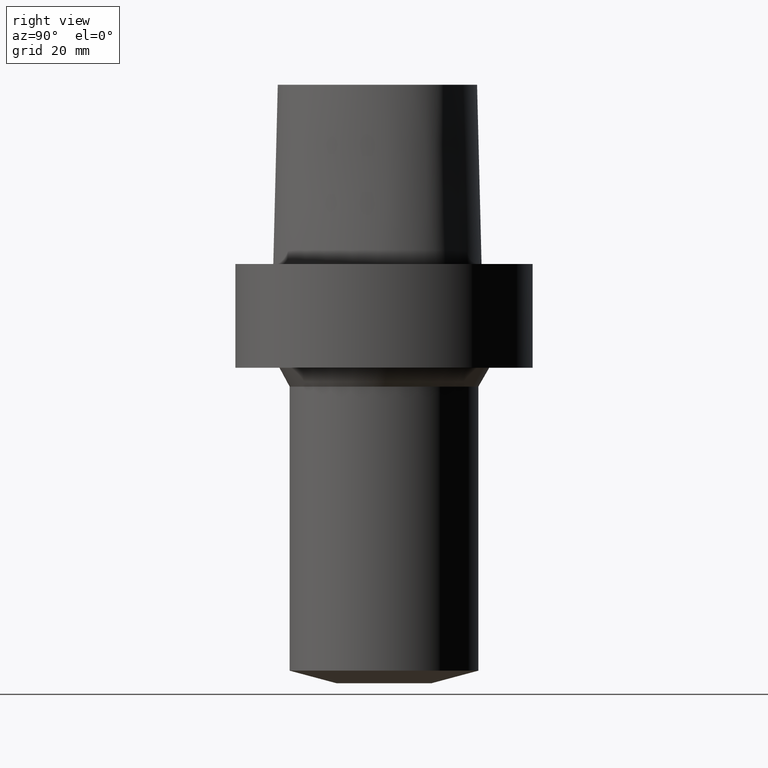
[diagram: clean part render]
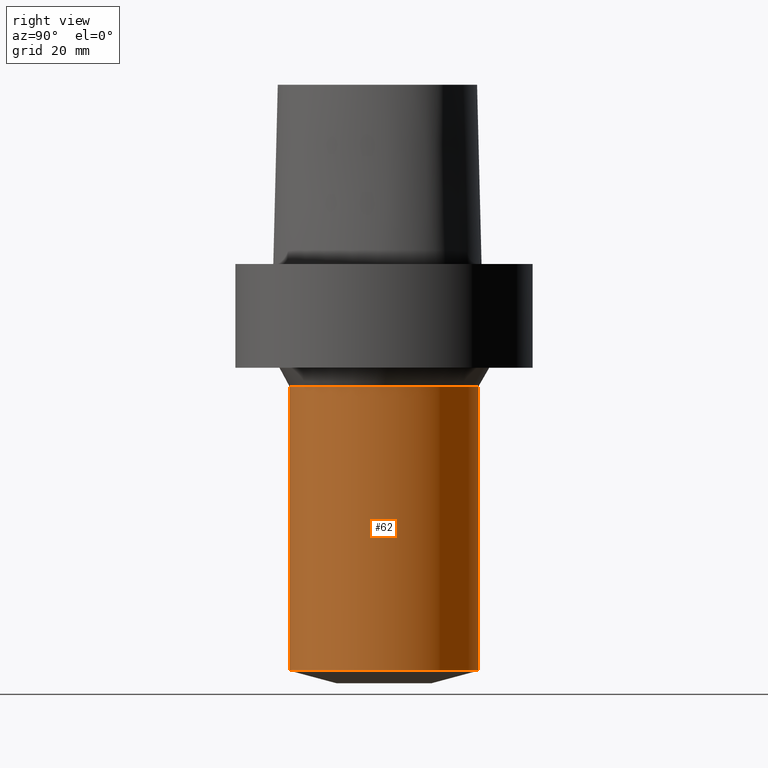
[diagram: same view with one face highlighted and labeled with its STEP entity id]
A machine part, right view. The second image highlights one B-rep face of the part: STEP entity #62.
In plain terms, the highlighted cylindrical surface (bore or boss wall) has radius 20 mm, axis along (0, 0, -1).
Its self-contained STEP definition (entity closure, byte-faithful):
#62=ADVANCED_FACE('Unnamed[1]',(#146,#147),#148,.T.);
#77=EDGE_CURVE('Unnamed[1]',#170,#170,#171,.T.);
#112=EDGE_CURVE('Unnamed[1]',#219,#219,#220,.T.);
#146=FACE_BOUND('',#316,.T.);
#147=FACE_BOUND('',#317,.T.);
#148=CYLINDRICAL_SURFACE('',#318,19.9999999999962);
#170=VERTEX_POINT('',#364);
#171=CIRCLE('',#365,19.9999999999962);
#219=VERTEX_POINT('',#546);
#220=CIRCLE('',#547,19.9999999999962);
#316=EDGE_LOOP('',(#563));
#317=EDGE_LOOP('',(#564));
#318=AXIS2_PLACEMENT_3D('',#565,#566,#567);
#364=CARTESIAN_POINT('',(5.27948346178823E-015,19.9999999999962,-86.2205080757));
#365=AXIS2_PLACEMENT_3D('',#582,#583,#584);
#546=CARTESIAN_POINT('',(1.59204083889218E-015,19.9999999999962,-26.0000000000101));
#547=AXIS2_PLACEMENT_3D('',#637,#638,#639);
#563=ORIENTED_EDGE('',*,*,#77,.F.);
#564=ORIENTED_EDGE('',*,*,#112,.T.);
#565=CARTESIAN_POINT('',(3.4357621503402E-015,6.87152430068041E-015,-56.1102540378551));
#566=DIRECTION('',(6.12323399573677E-017,1.22464679914735E-016,-1.0));
#567=DIRECTION('',(-1.23259516440783E-032,1.0,1.22464679914735E-016));
#582=CARTESIAN_POINT('',(5.27948346178823E-015,1.05589669235765E-014,-86.2205080757));
#583=DIRECTION('',(6.12323399573677E-017,1.22464679914735E-016,-1.0));
#584=DIRECTION('',(-1.23259516440783E-032,1.0,1.22464679914735E-016));
#637=CARTESIAN_POINT('',(1.59204083889218E-015,3.18408167778436E-015,-26.0000000000101));
#638=DIRECTION('',(6.12323399573677E-017,1.22464679914735E-016,-1.0));
#639=DIRECTION('',(-1.23259516440783E-032,1.0,1.22464679914735E-016));